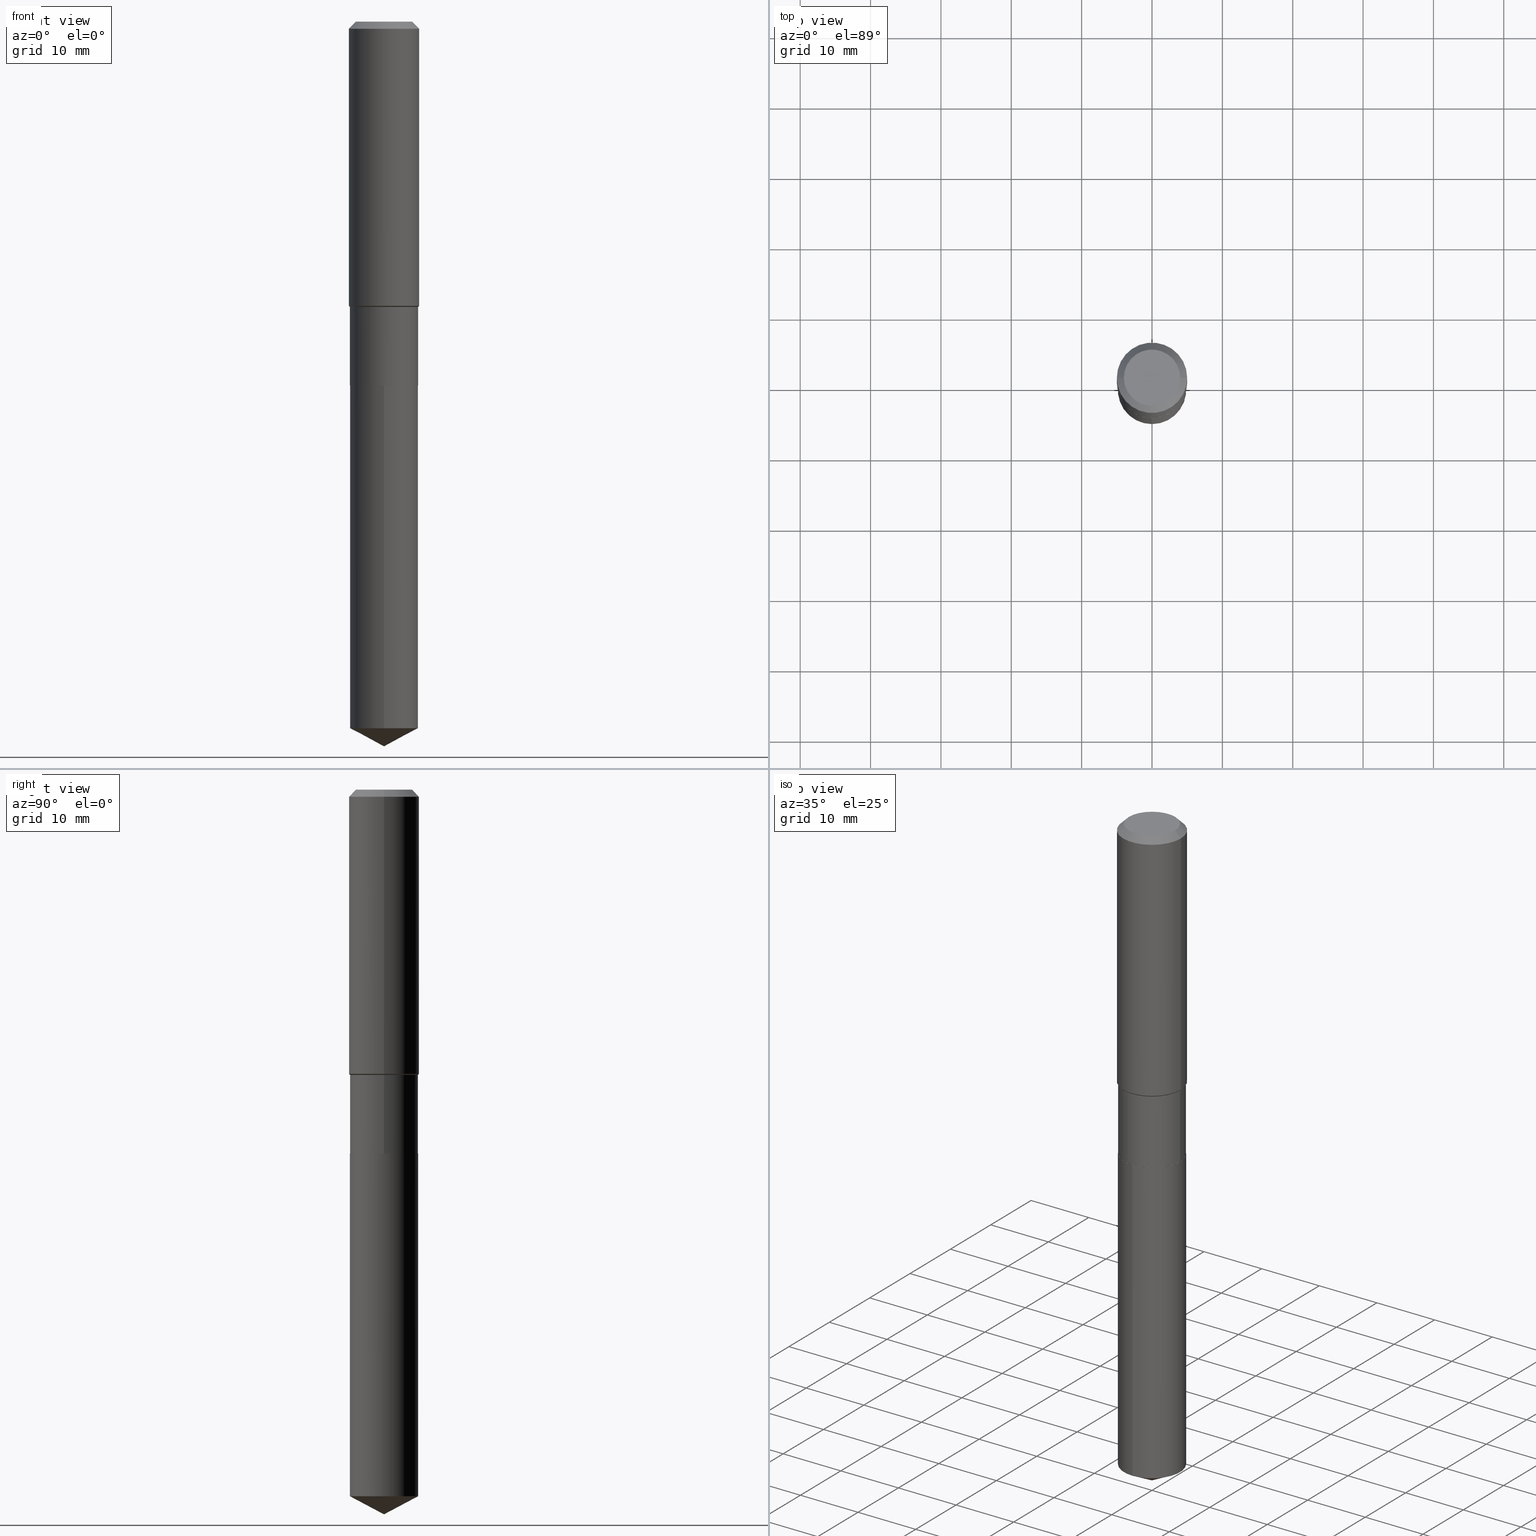
[diagram: canonical four-view strip — front | top / right | iso, engineering-drawing reading convention]
A machine part, canonical four-view strip (front | top / right | iso — engineering-drawing reading convention). The complete STEP part file that produces these views, byte-faithful:
ISO-10303-21;
HEADER;
FILE_DESCRIPTION (( 'STEP AP203' ),
    '1' );
FILE_NAME ('64867.STEP',
    '2024-04-24T19:22:35',
    ( '' ),
    ( '' ),
    'SwSTEP 2.0',
    'SolidWorks 2023',
    '' );
FILE_SCHEMA (( 'CONFIG_CONTROL_DESIGN' ));
ENDSEC;

DATA;
#1 = PERSON_AND_ORGANIZATION ( #427, #97 ) ;
#2 = VECTOR ( 'NONE', #70, 39.37007874015748143 ) ;
#3 = CARTESIAN_POINT ( 'NONE',  ( -9.427742298522567634E-47, 1.346031739168368355E-32, 3.855188123715870730E-18 ) ) ;
#4 = CC_DESIGN_PERSON_AND_ORGANIZATION_ASSIGNMENT ( #189, #81, ( #286 ) ) ;
#5 = CIRCLE ( 'NONE', #487, 0.1909499999999999531 ) ;
#6 = CARTESIAN_POINT ( 'NONE',  ( -1.333396723304142848E-15, -0.1909500000000071140, -2.035399999999999210 ) ) ;
#7 = ORIENTED_EDGE ( 'NONE', *, *, #341, .F. ) ;
#8 = LINE ( 'NONE', #108, #436 ) ;
#9 = COORDINATED_UNIVERSAL_TIME_OFFSET ( 5, 0, .BEHIND. ) ;
#10 = EDGE_CURVE ( 'NONE', #402, #484, #294, .T. ) ;
#11 = DIRECTION ( 'NONE',  ( 1.000000000000000000, -6.982962677686265922E-15, 0.000000000000000000 ) ) ;
#12 = AXIS2_PLACEMENT_3D ( 'NONE', #151, #296, #228 ) ;
#13 = APPROVAL_PERSON_ORGANIZATION ( #267, #232, #159 ) ;
#14 = DATE_AND_TIME ( #456, #419 ) ;
#15 = DIRECTION ( 'NONE',  ( 1.000000000000000000, -6.982962677686266711E-15, 0.000000000000000000 ) ) ;
#16 = DIRECTION ( 'NONE',  ( -6.982962677686265922E-15, -1.000000000000000000, 2.861322852751257324E-15 ) ) ;
#17 = DIRECTION ( 'NONE',  ( 1.000000000000000000, -6.982962677686265922E-15, 0.000000000000000000 ) ) ;
#18 = ADVANCED_FACE ( 'NONE', ( #403 ), #65, .T. ) ;
#19 = AXIS2_PLACEMENT_3D ( 'NONE', #461, #37, #112 ) ;
#20 = CARTESIAN_POINT ( 'NONE',  ( 9.627810689950954155E-31, -1.374596203102556547E-16, -0.03937000000000029365 ) ) ;
#21 = COORDINATED_UNIVERSAL_TIME_OFFSET ( 5, 0, .BEHIND. ) ;
#22 = EDGE_LOOP ( 'NONE', ( #219, #441, #439, #60 ) ) ;
#23 = ORIENTED_EDGE ( 'NONE', *, *, #432, .T. ) ;
#24 = ADVANCED_FACE ( 'NONE', ( #486 ), #410, .T. ) ;
#25 = VERTEX_POINT ( 'NONE', #293 ) ;
#26 = ORIENTED_EDGE ( 'NONE', *, *, #358, .T. ) ;
#27 = AXIS2_PLACEMENT_3D ( 'NONE', #178, #169, #289 ) ;
#28 = ORIENTED_EDGE ( 'NONE', *, *, #299, .F. ) ;
#29 = CC_DESIGN_SECURITY_CLASSIFICATION ( #286, ( #197 ) ) ;
#30 = ORIENTED_EDGE ( 'NONE', *, *, #201, .F. ) ;
#31 = DIRECTION ( 'NONE',  ( -2.445468806185136597E-29, 3.491481338843145583E-15, 1.000000000000000000 ) ) ;
#32 = CC_DESIGN_PERSON_AND_ORGANIZATION_ASSIGNMENT ( #44, #379, ( #96 ) ) ;
#33 = ORIENTED_EDGE ( 'NONE', *, *, #212, .T. ) ;
#34 = VECTOR ( 'NONE', #191, 39.37007874015748143 ) ;
#35 = ORIENTED_EDGE ( 'NONE', *, *, #10, .T. ) ;
#36 = CARTESIAN_POINT ( 'NONE',  ( -4.713871149261283817E-47, 6.730158695841841775E-33, 1.927594061857935365E-18 ) ) ;
#37 = DIRECTION ( 'NONE',  ( 2.445468806185136597E-29, -3.491481338843145583E-15, -1.000000000000000000 ) ) ;
#38 = APPLICATION_PROTOCOL_DEFINITION ( 'international standard', 'config_control_design', 1994, #225 ) ;
#39 = EDGE_CURVE ( 'NONE', #369, #176, #449, .T. ) ;
#40 = DIRECTION ( 'NONE',  ( 1.000000000000000000, -6.982962677686265922E-15, 4.876223630392693006E-29 ) ) ;
#41 = LINE ( 'NONE', #340, #400 ) ;
#42 = AXIS2_PLACEMENT_3D ( 'NONE', #36, #337, #417 ) ;
#43 = APPROVAL_PERSON_ORGANIZATION ( #1, #174, #485 ) ;
#44 = PERSON_AND_ORGANIZATION ( #427, #97 ) ;
#45 = LINE ( 'NONE', #259, #260 ) ;
#46 = EDGE_CURVE ( 'NONE', #324, #193, #179, .T. ) ;
#47 = CARTESIAN_POINT ( 'NONE',  ( 9.627810689950954155E-31, -1.374596203102556547E-16, -0.03937000000000029365 ) ) ;
#48 = DIRECTION ( 'NONE',  ( -2.445468806185136597E-29, 3.491481338843145583E-15, 1.000000000000000000 ) ) ;
#49 = AXIS2_PLACEMENT_3D ( 'NONE', #476, #326, #135 ) ;
#50 = CC_DESIGN_APPROVAL ( #232, ( #197 ) ) ;
#51 = APPROVAL_DATE_TIME ( #155, #232 ) ;
#52 = CARTESIAN_POINT ( 'NONE',  ( 9.668415666790709812E-29, -1.380369680359147587E-14, -3.953570084024240927 ) ) ;
#53 = EDGE_CURVE ( 'NONE', #353, #120, #234, .T. ) ;
#54 = LINE ( 'NONE', #163, #34 ) ;
#55 = CYLINDRICAL_SURFACE ( 'NONE', #269, 0.1909499999999999809 ) ;
#56 = CLOSED_SHELL ( 'NONE', ( #18, #226, #424, #285, #331 ) ) ;
#57 = CIRCLE ( 'NONE', #235, 0.1574800000000000089 ) ;
#58 = ADVANCED_FACE ( 'NONE', ( #102 ), #407, .T. ) ;
#59 =( NAMED_UNIT ( * ) SI_UNIT ( $, .STERADIAN. ) SOLID_ANGLE_UNIT ( ) );
#60 = ORIENTED_EDGE ( 'NONE', *, *, #380, .T. ) ;
#61 = CARTESIAN_POINT ( 'NONE',  ( -0.1968500000000000250, -1.446277821392496780E-15, -0.03937000000000029365 ) ) ;
#62 = ORIENTED_EDGE ( 'NONE', *, *, #46, .T. ) ;
#63 = AXIS2_PLACEMENT_3D ( 'NONE', #215, #395, #207 ) ;
#64 = LENGTH_MEASURE_WITH_UNIT ( LENGTH_MEASURE( 0.02539999999999999897 ), #128 );
#65 = CYLINDRICAL_SURFACE ( 'NONE', #27, 0.1909500000000000086 ) ;
#66 = PRODUCT ( '64867', '64867', '', ( #367 ) ) ;
#67 = ORIENTED_EDGE ( 'NONE', *, *, #105, .T. ) ;
#68 = DIRECTION ( 'NONE',  ( 1.000000000000000000, -6.982962677686266711E-15, 0.000000000000000000 ) ) ;
#69 = AXIS2_PLACEMENT_3D ( 'NONE', #239, #233, #357 ) ;
#70 = DIRECTION ( 'NONE',  ( 0.7071067811864267805, -2.468850131080992517E-15, 0.7071067811866682540 ) ) ;
#71 = EDGE_CURVE ( 'NONE', #306, #402, #210, .T. ) ;
#72 = DIRECTION ( 'NONE',  ( 1.000000000000000000, -6.982962677686266711E-15, 0.000000000000000000 ) ) ;
#73 = ORIENTED_EDGE ( 'NONE', *, *, #137, .F. ) ;
#74 = CARTESIAN_POINT ( 'NONE',  ( 4.976284473706134257E-29, -7.104815376411916848E-15, -2.034899999999999931 ) ) ;
#75 = DATE_TIME_ROLE ( 'classification_date' ) ;
#76 = EDGE_CURVE ( 'NONE', #365, #484, #268, .T. ) ;
#77 = CARTESIAN_POINT ( 'NONE',  ( 0.1968500000000002192, -6.927098976264797529E-15, -1.590300000000000047 ) ) ;
#78 = CALENDAR_DATE ( 2024, 24, 4 ) ;
#79 = FACE_OUTER_BOUND ( 'NONE', #217, .T. ) ;
#80 = CARTESIAN_POINT ( 'NONE',  ( 0.000000000000000000, 0.000000000000000000, 0.000000000000000000 ) ) ;
#81 = PERSON_AND_ORGANIZATION_ROLE ( 'classification_officer' ) ;
#82 = CARTESIAN_POINT ( 'NONE',  ( 4.977507208109226498E-29, -7.106561117081337562E-15, -2.035399999999999654 ) ) ;
#83 = AXIS2_PLACEMENT_3D ( 'NONE', #145, #384, #412 ) ;
#84 = CC_DESIGN_PERSON_AND_ORGANIZATION_ASSIGNMENT ( #389, #265, ( #197 ) ) ;
#85 = DIRECTION ( 'NONE',  ( 1.000000000000000000, -6.982962677686266711E-15, 4.876176775795935793E-29 ) ) ;
#86 = CYLINDRICAL_SURFACE ( 'NONE', #401, 0.1909499999999999809 ) ;
#87 = DATE_AND_TIME ( #435, #123 ) ;
#88 = EDGE_CURVE ( 'NONE', #25, #426, #376, .T. ) ;
#89 = LINE ( 'NONE', #447, #448 ) ;
#90 = ORIENTED_EDGE ( 'NONE', *, *, #375, .F. ) ;
#91 = DIRECTION ( 'NONE',  ( -2.445512260748093930E-29, 3.491419109435710839E-15, 1.000000000000000000 ) ) ;
#92 = ORIENTED_EDGE ( 'NONE', *, *, #125, .F. ) ;
#93 = PERSON_AND_ORGANIZATION ( #427, #97 ) ;
#94 = EDGE_LOOP ( 'NONE', ( #218, #323, #328, #295 ) ) ;
#95 = DIRECTION ( 'NONE',  ( 1.000000000000000000, -6.982962677686265133E-15, 0.000000000000000000 ) ) ;
#96 = PRODUCT_DEFINITION ( 'UNKNOWN', '', #197, #138 ) ;
#97 = ORGANIZATION ( 'UNSPECIFIED', 'UNSPECIFIED', '' ) ;
#98 = DIRECTION ( 'NONE',  ( -2.445512260748093650E-29, 3.491419109435710839E-15, 1.000000000000000000 ) ) ;
#99 = CARTESIAN_POINT ( 'NONE',  ( 0.1968500000000000250, -1.487948651171581601E-15, -0.03937000000000029365 ) ) ;
#100 = EDGE_LOOP ( 'NONE', ( #291, #33, #26, #251 ) ) ;
#101 = ORIENTED_EDGE ( 'NONE', *, *, #358, .F. ) ;
#102 = FACE_OUTER_BOUND ( 'NONE', #114, .T. ) ;
#103 = ORIENTED_EDGE ( 'NONE', *, *, #46, .F. ) ;
#104 = DIRECTION ( 'NONE',  ( 1.000000000000000000, -6.982962677686265922E-15, 4.876223630392693006E-29 ) ) ;
#105 = EDGE_CURVE ( 'NONE', #193, #120, #190, .T. ) ;
#106 = CIRCLE ( 'NONE', #278, 0.1909499999999999531 ) ;
#107 = ORIENTED_EDGE ( 'NONE', *, *, #408, .F. ) ;
#108 = CARTESIAN_POINT ( 'NONE',  ( -0.1968500000000001082, 1.398703375343757985E-15, -9.682923725166787881E-30 ) ) ;
#109 = PERSON_AND_ORGANIZATION ( #427, #97 ) ;
#110 = CARTESIAN_POINT ( 'NONE',  ( 0.1968500000000000250, -1.512055823412797189E-15, -0.03937000000000029365 ) ) ;
#111 = EDGE_CURVE ( 'NONE', #370, #426, #8, .T. ) ;
#112 = DIRECTION ( 'NONE',  ( -1.000000000000000000, 6.982962677686265922E-15, 0.000000000000000000 ) ) ;
#113 = CARTESIAN_POINT ( 'NONE',  ( -9.427742298522567634E-47, 1.346031739168368355E-32, 3.855188123715870730E-18 ) ) ;
#114 = EDGE_LOOP ( 'NONE', ( #23, #488, #127, #482 ) ) ;
#115 = SHAPE_DEFINITION_REPRESENTATION ( #434, #132 ) ;
#116 = PLANE ( 'NONE',  #69 ) ;
#117 = CARTESIAN_POINT ( 'NONE',  ( 4.977507208109227059E-29, -7.106561117081339140E-15, -2.035400000000000098 ) ) ;
#118 = ADVANCED_FACE ( 'NONE', ( #263 ), #320, .T. ) ;
#119 = CARTESIAN_POINT ( 'NONE',  ( -0.1904500000000000082, -5.750683249652116288E-15, -2.035400000000000098 ) ) ;
#120 = VERTEX_POINT ( 'NONE', #338 ) ;
#121 = CIRCLE ( 'NONE', #363, 0.1904500000000000082 ) ;
#122 = AXIS2_PLACEMENT_3D ( 'NONE', #74, #227, #220 ) ;
#123 = LOCAL_TIME ( 15, 22, 35.00000000000000000, #21 ) ;
#124 = DIRECTION ( 'NONE',  ( -2.445468806185136597E-29, 3.491481338843145583E-15, 1.000000000000000000 ) ) ;
#125 = EDGE_CURVE ( 'NONE', #324, #409, #45, .T. ) ;
#126 = FACE_OUTER_BOUND ( 'NONE', #397, .T. ) ;
#127 = ORIENTED_EDGE ( 'NONE', *, *, #390, .F. ) ;
#128 =( LENGTH_UNIT ( ) NAMED_UNIT ( * ) SI_UNIT ( $, .METRE. ) );
#129 = CARTESIAN_POINT ( 'NONE',  ( 0.000000000000000000, 0.000000000000000000, 0.000000000000000000 ) ) ;
#130 = VECTOR ( 'NONE', #319, 39.37007874015748854 ) ;
#131 = AXIS2_PLACEMENT_3D ( 'NONE', #490, #381, #187 ) ;
#132 = ADVANCED_BREP_SHAPE_REPRESENTATION ( '64867', ( #279, #457, #63 ), #300 ) ;
#133 = LINE ( 'NONE', #288, #254 ) ;
#134 = ORIENTED_EDGE ( 'NONE', *, *, #399, .T. ) ;
#135 = DIRECTION ( 'NONE',  ( 1.000000000000000000, -6.982962677686265922E-15, 0.000000000000000000 ) ) ;
#136 = ORIENTED_EDGE ( 'NONE', *, *, #188, .T. ) ;
#137 = EDGE_CURVE ( 'NONE', #306, #365, #121, .T. ) ;
#138 = DESIGN_CONTEXT ( 'detailed design', #342, 'design' ) ;
#139 = DIRECTION ( 'NONE',  ( -2.445468806185136597E-29, 3.491481338843145583E-15, 1.000000000000000000 ) ) ;
#140 = ORIENTED_EDGE ( 'NONE', *, *, #444, .F. ) ;
#141 = VECTOR ( 'NONE', #433, 39.37007874015748143 ) ;
#142 = DIRECTION ( 'NONE',  ( -2.445512260748093650E-29, 3.491419109435710839E-15, 1.000000000000000000 ) ) ;
#143 = EDGE_CURVE ( 'NONE', #175, #176, #41, .T. ) ;
#144 = EDGE_LOOP ( 'NONE', ( #35, #149, #311, #101 ) ) ;
#145 = CARTESIAN_POINT ( 'NONE',  ( 3.903457308432716066E-29, -5.573102513061429663E-15, -1.596200000000000285 ) ) ;
#146 = DIRECTION ( 'NONE',  ( -2.445468806185136597E-29, 3.491481338843145583E-15, 1.000000000000000000 ) ) ;
#147 = CIRCLE ( 'NONE', #347, 0.1909500000000000086 ) ;
#148 = DIRECTION ( 'NONE',  ( -2.445468806185136597E-29, 3.491481338843145583E-15, 1.000000000000000000 ) ) ;
#149 = ORIENTED_EDGE ( 'NONE', *, *, #467, .T. ) ;
#150 = PERSON_AND_ORGANIZATION_ROLE ( 'creator' ) ;
#151 = CARTESIAN_POINT ( 'NONE',  ( 2.938752182690371349E-29, -1.002617435221089489E-14, -2.035399999999999654 ) ) ;
#152 = CALENDAR_DATE ( 2024, 24, 4 ) ;
#153 = ORIENTED_EDGE ( 'NONE', *, *, #201, .T. ) ;
#154 = DIRECTION ( 'NONE',  ( 6.273719981627762132E-15, 0.8829475928589292089, 0.4694715627858865870 ) ) ;
#155 = DATE_AND_TIME ( #152, #479 ) ;
#156 = VECTOR ( 'NONE', #344, 39.37007874015748143 ) ;
#157 = AXIS2_PLACEMENT_3D ( 'NONE', #117, #274, #15 ) ;
#158 = CARTESIAN_POINT ( 'NONE',  ( 0.1909499999999999809, -1.333396723304192546E-15, 9.311059553382337160E-30 ) ) ;
#159 = APPROVAL_ROLE ( '' ) ;
#160 = EDGE_CURVE ( 'NONE', #365, #306, #314, .T. ) ;
#161 = CARTESIAN_POINT ( 'NONE',  ( -0.1909499999999999531, -4.982177590802761889E-15, -1.596200000000000285 ) ) ;
#162 = CARTESIAN_POINT ( 'NONE',  ( 9.627810689950954155E-31, -1.374596203102556547E-16, -0.03937000000000029365 ) ) ;
#163 = CARTESIAN_POINT ( 'NONE',  ( 0.1909499999999999531, -6.906499236365622209E-15, -1.596200000000000285 ) ) ;
#164 = CIRCLE ( 'NONE', #394, 0.1968500000000002192 ) ;
#165 = CC_DESIGN_DATE_AND_TIME_ASSIGNMENT ( #14, #386, ( #96 ) ) ;
#166 = EDGE_LOOP ( 'NONE', ( #206, #248, #208, #450 ) ) ;
#167 = DIRECTION ( 'NONE',  ( 1.000000000000000000, -6.982962677686265922E-15, 0.000000000000000000 ) ) ;
#168 = APPROVAL_DATE_TIME ( #87, #174 ) ;
#169 = DIRECTION ( 'NONE',  ( -2.445512260748093650E-29, 3.491419109435710839E-15, 1.000000000000000000 ) ) ;
#170 = DIRECTION ( 'NONE',  ( 1.000000000000000000, -6.982962677686266711E-15, 0.000000000000000000 ) ) ;
#171 = ORIENTED_EDGE ( 'NONE', *, *, #137, .T. ) ;
#172 = AXIS2_PLACEMENT_3D ( 'NONE', #463, #148, #224 ) ;
#173 =( CONVERSION_BASED_UNIT ( 'INCH', #64 ) LENGTH_UNIT ( ) NAMED_UNIT ( #243 ) );
#174 = APPROVAL ( #240, 'UNSPECIFIED' ) ;
#175 = VERTEX_POINT ( 'NONE', #77 ) ;
#176 = VERTEX_POINT ( 'NONE', #110 ) ;
#177 = PERSON_AND_ORGANIZATION_ROLE ( 'design_owner' ) ;
#178 = CARTESIAN_POINT ( 'NONE',  ( 4.977507208109226498E-29, -7.106561117081337562E-15, -2.035399999999999654 ) ) ;
#179 = LINE ( 'NONE', #245, #130 ) ;
#180 = AXIS2_PLACEMENT_3D ( 'NONE', #82, #310, #468 ) ;
#181 = FACE_OUTER_BOUND ( 'NONE', #223, .T. ) ;
#182 = FACE_OUTER_BOUND ( 'NONE', #94, .T. ) ;
#183 = CARTESIAN_POINT ( 'NONE',  ( 1.356781353934007804E-15, 0.1909499999999862418, -3.953570084024241815 ) ) ;
#184 = EDGE_LOOP ( 'NONE', ( #229, #213, #90, #343 ) ) ;
#185 = FACE_OUTER_BOUND ( 'NONE', #249, .T. ) ;
#186 = AXIS2_PLACEMENT_3D ( 'NONE', #428, #200, #469 ) ;
#187 = DIRECTION ( 'NONE',  ( -6.982962677686265133E-15, -1.000000000000000000, 3.541896320645568363E-15 ) ) ;
#188 = EDGE_CURVE ( 'NONE', #25, #369, #57, .T. ) ;
#189 = PERSON_AND_ORGANIZATION ( #427, #97 ) ;
#190 = LINE ( 'NONE', #6, #339 ) ;
#191 = DIRECTION ( 'NONE',  ( 0.7071067811865434649, -2.468850131082213673E-15, 0.7071067811865516806 ) ) ;
#192 = ADVANCED_FACE ( 'NONE', ( #185 ), #266, .F. ) ;
#193 = VERTEX_POINT ( 'NONE', #271 ) ;
#194 = AXIS2_PLACEMENT_3D ( 'NONE', #257, #142, #452 ) ;
#195 = CONICAL_SURFACE ( 'NONE', #19, 0.1968500000000000250, 0.7853981633974447263 ) ;
#196 = FACE_OUTER_BOUND ( 'NONE', #349, .T. ) ;
#197 = PRODUCT_DEFINITION_FORMATION_WITH_SPECIFIED_SOURCE ( 'ANY', '', #66, .NOT_KNOWN. ) ;
#198 = DATE_AND_TIME ( #78, #205 ) ;
#199 = CARTESIAN_POINT ( 'NONE',  ( 9.916796768559594443E-29, -1.415805363067275312E-14, -4.055100000000000371 ) ) ;
#200 = DIRECTION ( 'NONE',  ( -2.445512260748093650E-29, 3.491419109435710839E-15, 1.000000000000000000 ) ) ;
#201 = EDGE_CURVE ( 'NONE', #369, #25, #455, .T. ) ;
#202 = DIRECTION ( 'NONE',  ( -2.445512260748093650E-29, 3.491419109435710839E-15, 1.000000000000000000 ) ) ;
#203 = CIRCLE ( 'NONE', #49, 0.1968500000000002192 ) ;
#204 = UNCERTAINTY_MEASURE_WITH_UNIT (LENGTH_MEASURE( 1.000000000000000082E-05 ), #173, 'distance_accuracy_value', 'NONE');
#205 = LOCAL_TIME ( 15, 22, 35.00000000000000000, #466 ) ;
#206 = ORIENTED_EDGE ( 'NONE', *, *, #76, .F. ) ;
#207 = DIRECTION ( 'NONE',  ( 1.000000000000000000, 0.000000000000000000, 0.000000000000000000 ) ) ;
#208 = ORIENTED_EDGE ( 'NONE', *, *, #71, .T. ) ;
#209 = CARTESIAN_POINT ( 'NONE',  ( -0.1909499999999999809, 1.356781353933911169E-15, -9.392706554841740811E-30 ) ) ;
#210 = LINE ( 'NONE', #362, #2 ) ;
#211 = ORIENTED_EDGE ( 'NONE', *, *, #375, .T. ) ;
#212 = EDGE_CURVE ( 'NONE', #484, #402, #374, .T. ) ;
#213 = ORIENTED_EDGE ( 'NONE', *, *, #444, .T. ) ;
#214 = CIRCLE ( 'NONE', #186, 0.1909500000000000086 ) ;
#215 = CARTESIAN_POINT ( 'NONE',  ( 0.000000000000000000, 0.000000000000000000, 0.000000000000000000 ) ) ;
#216 = ORIENTED_EDGE ( 'NONE', *, *, #10, .F. ) ;
#217 = EDGE_LOOP ( 'NONE', ( #297, #134, #475, #443 ) ) ;
#218 = ORIENTED_EDGE ( 'NONE', *, *, #481, .T. ) ;
#219 = ORIENTED_EDGE ( 'NONE', *, *, #39, .F. ) ;
#220 = DIRECTION ( 'NONE',  ( 1.000000000000000000, -6.982962677686265133E-15, 0.000000000000000000 ) ) ;
#221 = CONICAL_SURFACE ( 'NONE', #261, 74.04434902938338325, 1.082104136236485603 ) ;
#222 = DIRECTION ( 'NONE',  ( -2.445512260748093930E-29, 3.491419109435710839E-15, 1.000000000000000000 ) ) ;
#223 = EDGE_LOOP ( 'NONE', ( #103, #366, #7 ) ) ;
#224 = DIRECTION ( 'NONE',  ( 1.000000000000000000, -6.982962677686266711E-15, 0.000000000000000000 ) ) ;
#225 = APPLICATION_CONTEXT ( 'configuration controlled 3d designs of mechanical parts and assemblies' ) ;
#226 = ADVANCED_FACE ( 'NONE', ( #181 ), #308, .T. ) ;
#227 = DIRECTION ( 'NONE',  ( -2.445468806185136597E-29, 3.491481338843145583E-15, 1.000000000000000000 ) ) ;
#228 = DIRECTION ( 'NONE',  ( 1.000000000000000000, -6.982962677686265922E-15, 4.876176775795935793E-29 ) ) ;
#229 = ORIENTED_EDGE ( 'NONE', *, *, #341, .T. ) ;
#230 = ORIENTED_EDGE ( 'NONE', *, *, #299, .T. ) ;
#231 = DIRECTION ( 'NONE',  ( -2.445468806185136597E-29, 3.491481338843145583E-15, 1.000000000000000000 ) ) ;
#232 = APPROVAL ( #425, 'UNSPECIFIED' ) ;
#233 = DIRECTION ( 'NONE',  ( 2.445512260748093370E-29, -3.491419109435710839E-15, -1.000000000000000000 ) ) ;
#234 = CIRCLE ( 'NONE', #194, 0.1909500000000000086 ) ;
#235 = AXIS2_PLACEMENT_3D ( 'NONE', #113, #378, #40 ) ;
#236 = FACE_OUTER_BOUND ( 'NONE', #22, .T. ) ;
#237 = CARTESIAN_POINT ( 'NONE',  ( -0.1968500000000002192, -4.153799397818495766E-15, -1.590300000000000047 ) ) ;
#238 = ADVANCED_FACE ( 'NONE', ( #335 ), #489, .F. ) ;
#239 = CARTESIAN_POINT ( 'NONE',  ( 4.977507208109226498E-29, -7.106561117081337562E-15, -2.035399999999999654 ) ) ;
#240 = APPROVAL_STATUS ( 'not_yet_approved' ) ;
#241 = CIRCLE ( 'NONE', #437, 0.1909500000000000086 ) ;
#242 = CC_DESIGN_APPROVAL ( #256, ( #286 ) ) ;
#243 = DIMENSIONAL_EXPONENTS ( 1.000000000000000000, 0.000000000000000000, 0.000000000000000000, 0.000000000000000000, 0.000000000000000000, 0.000000000000000000, 0.000000000000000000 ) ;
#244 = DIRECTION ( 'NONE',  ( -0.7071067811865434649, 7.493145998870339961E-15, 0.7071067811865516806 ) ) ;
#245 = CARTESIAN_POINT ( 'NONE',  ( 9.916619873724709736E-29, -1.415830695414453642E-14, -4.055100000000000371 ) ) ;
#246 = ADVANCED_FACE ( 'NONE', ( #304 ), #195, .T. ) ;
#247 = CARTESIAN_POINT ( 'NONE',  ( 3.903457308432716066E-29, -5.573102513061429663E-15, -1.596200000000000285 ) ) ;
#248 = ORIENTED_EDGE ( 'NONE', *, *, #160, .T. ) ;
#249 = EDGE_LOOP ( 'NONE', ( #136, #153 ) ) ;
#250 = LINE ( 'NONE', #209, #333 ) ;
#251 = ORIENTED_EDGE ( 'NONE', *, *, #451, .F. ) ;
#252 = ORIENTED_EDGE ( 'NONE', *, *, #451, .T. ) ;
#253 = AXIS2_PLACEMENT_3D ( 'NONE', #446, #31, #95 ) ;
#254 = VECTOR ( 'NONE', #244, 39.37007874015748143 ) ;
#255 = LOCAL_TIME ( 15, 22, 35.00000000000000000, #303 ) ;
#256 = APPROVAL ( #301, 'UNSPECIFIED' ) ;
#257 = CARTESIAN_POINT ( 'NONE',  ( 4.977507208109226498E-29, -7.106561117081337562E-15, -2.035399999999999654 ) ) ;
#258 = DIRECTION ( 'NONE',  ( 0.7071067811865450192, -7.319954787623246579E-15, -0.7071067811865500152 ) ) ;
#259 = CARTESIAN_POINT ( 'NONE',  ( 9.916798319718489226E-29, -1.415805363067275312E-14, -4.055100000000000371 ) ) ;
#260 = VECTOR ( 'NONE', #154, 39.37007874015748143 ) ;
#261 = AXIS2_PLACEMENT_3D ( 'NONE', #359, #98, #442 ) ;
#262 = CC_DESIGN_APPROVAL ( #174, ( #96 ) ) ;
#263 = FACE_OUTER_BOUND ( 'NONE', #404, .T. ) ;
#264 = ADVANCED_FACE ( 'NONE', ( #182 ), #276, .T. ) ;
#265 = PERSON_AND_ORGANIZATION_ROLE ( 'design_supplier' ) ;
#266 = PLANE ( 'NONE',  #42 ) ;
#267 = PERSON_AND_ORGANIZATION ( #427, #97 ) ;
#268 = LINE ( 'NONE', #373, #156 ) ;
#269 = AXIS2_PLACEMENT_3D ( 'NONE', #272, #124, #387 ) ;
#270 = CC_DESIGN_PERSON_AND_ORGANIZATION_ASSIGNMENT ( #109, #150, ( #197 ) ) ;
#271 = CARTESIAN_POINT ( 'NONE',  ( -1.333396723304096305E-15, -0.1909500000000138031, -3.953570084024240483 ) ) ;
#272 = CARTESIAN_POINT ( 'NONE',  ( 0.000000000000000000, 0.000000000000000000, 0.000000000000000000 ) ) ;
#273 = VERTEX_POINT ( 'NONE', #161 ) ;
#274 = DIRECTION ( 'NONE',  ( -2.445468806185136597E-29, 3.491481338843145583E-15, 1.000000000000000000 ) ) ;
#275 = AXIS2_PLACEMENT_3D ( 'NONE', #129, #287, #440 ) ;
#276 = CONICAL_SURFACE ( 'NONE', #430, 0.1909499999999999531, 0.7853981633974425058 ) ;
#277 = DIRECTION ( 'NONE',  ( -1.000000000000000000, 6.982962677686265922E-15, 0.000000000000000000 ) ) ;
#278 = AXIS2_PLACEMENT_3D ( 'NONE', #329, #361, #480 ) ;
#279 = MANIFOLD_SOLID_BREP ( 'Body-Move/Copy2[1]', #56 ) ;
#280 = ADVANCED_FACE ( 'NONE', ( #474 ), #86, .T. ) ;
#281 = FACE_OUTER_BOUND ( 'NONE', #166, .T. ) ;
#282 = ORIENTED_EDGE ( 'NONE', *, *, #76, .T. ) ;
#283 = CYLINDRICAL_SURFACE ( 'NONE', #180, 0.1909500000000000086 ) ;
#284 = VECTOR ( 'NONE', #302, 39.37007874015748143 ) ;
#285 = ADVANCED_FACE ( 'NONE', ( #196 ), #283, .T. ) ;
#286 = SECURITY_CLASSIFICATION ( '', '', #345 ) ;
#287 = DIRECTION ( 'NONE',  ( -2.445468806185136597E-29, 3.491481338843145583E-15, 1.000000000000000000 ) ) ;
#288 = CARTESIAN_POINT ( 'NONE',  ( -0.1909499999999999531, -4.216321159127519480E-15, -1.596200000000000285 ) ) ;
#289 = DIRECTION ( 'NONE',  ( -6.982962677686265922E-15, -1.000000000000000000, 2.861322852751257324E-15 ) ) ;
#290 = DIRECTION ( 'NONE',  ( -2.445468806185136597E-29, 3.491481338843145583E-15, 1.000000000000000000 ) ) ;
#291 = ORIENTED_EDGE ( 'NONE', *, *, #467, .F. ) ;
#292 = EDGE_CURVE ( 'NONE', #462, #175, #54, .T. ) ;
#293 = CARTESIAN_POINT ( 'NONE',  ( -0.1574800000000000089, 1.168406772637159618E-15, 3.855188123707939751E-18 ) ) ;
#294 = CIRCLE ( 'NONE', #253, 0.1909500000000000086 ) ;
#295 = ORIENTED_EDGE ( 'NONE', *, *, #292, .F. ) ;
#296 = DIRECTION ( 'NONE',  ( -2.438088387897960049E-29, 3.491481338843145188E-15, 1.000000000000000000 ) ) ;
#297 = ORIENTED_EDGE ( 'NONE', *, *, #111, .F. ) ;
#298 = DIRECTION ( 'NONE',  ( 1.000000000000000000, -6.982962677686266711E-15, 0.000000000000000000 ) ) ;
#299 = EDGE_CURVE ( 'NONE', #409, #193, #214, .T. ) ;
#300 =( GEOMETRIC_REPRESENTATION_CONTEXT ( 3 ) GLOBAL_UNCERTAINTY_ASSIGNED_CONTEXT ( ( #204 ) ) GLOBAL_UNIT_ASSIGNED_CONTEXT ( ( #173, #377, #59 ) ) REPRESENTATION_CONTEXT ( 'NONE', 'WORKASPACE' ) );
#301 = APPROVAL_STATUS ( 'not_yet_approved' ) ;
#302 = DIRECTION ( 'NONE',  ( -0.7071067811865450192, 2.468850131082230634E-15, -0.7071067811865500152 ) ) ;
#303 = COORDINATED_UNIVERSAL_TIME_OFFSET ( 5, 0, .BEHIND. ) ;
#304 = FACE_OUTER_BOUND ( 'NONE', #330, .T. ) ;
#305 = COORDINATED_UNIVERSAL_TIME_OFFSET ( 5, 0, .BEHIND. ) ;
#306 = VERTEX_POINT ( 'NONE', #315 ) ;
#307 = DIRECTION ( 'NONE',  ( -2.445468806185136877E-29, 3.491481338843145188E-15, 1.000000000000000000 ) ) ;
#308 = CONICAL_SURFACE ( 'NONE', #131, 74.04434902938338325, 1.082104136236485603 ) ;
#309 = CYLINDRICAL_SURFACE ( 'NONE', #364, 0.1968500000000001082 ) ;
#310 = DIRECTION ( 'NONE',  ( -2.445512260748093650E-29, 3.491419109435710839E-15, 1.000000000000000000 ) ) ;
#311 = ORIENTED_EDGE ( 'NONE', *, *, #481, .F. ) ;
#312 = CARTESIAN_POINT ( 'NONE',  ( 1.356781353934008199E-15, 0.1909499999999929032, -2.035400000000000542 ) ) ;
#313 = ADVANCED_FACE ( 'NONE', ( #281 ), #464, .T. ) ;
#314 = CIRCLE ( 'NONE', #172, 0.1904500000000000082 ) ;
#315 = CARTESIAN_POINT ( 'NONE',  ( 0.1904500000000000082, -8.436466359046688679E-15, -2.035400000000000098 ) ) ;
#316 = CARTESIAN_POINT ( 'NONE',  ( 3.889029042476222915E-29, -5.552502773162254343E-15, -1.590300000000000047 ) ) ;
#317 = ADVANCED_FACE ( 'NONE', ( #236 ), #355, .T. ) ;
#318 = CARTESIAN_POINT ( 'NONE',  ( 0.1909499999999999531, -6.906499236365622209E-15, -1.596200000000000285 ) ) ;
#319 = DIRECTION ( 'NONE',  ( -6.165590087286829718E-15, -0.8829475928589257672, 0.4694715627858926932 ) ) ;
#320 = CONICAL_SURFACE ( 'NONE', #83, 0.1909499999999999531, 0.7853981633974425058 ) ;
#321 = FACE_OUTER_BOUND ( 'NONE', #383, .T. ) ;
#322 = AXIS2_PLACEMENT_3D ( 'NONE', #47, #48, #17 ) ;
#323 = ORIENTED_EDGE ( 'NONE', *, *, #408, .T. ) ;
#324 = VERTEX_POINT ( 'NONE', #199 ) ;
#325 = ORIENTED_EDGE ( 'NONE', *, *, #88, .F. ) ;
#326 = DIRECTION ( 'NONE',  ( -2.445468806185136597E-29, 3.491481338843145583E-15, 1.000000000000000000 ) ) ;
#327 = ORIENTED_EDGE ( 'NONE', *, *, #53, .F. ) ;
#328 = ORIENTED_EDGE ( 'NONE', *, *, #432, .F. ) ;
#329 = CARTESIAN_POINT ( 'NONE',  ( 3.903457308432716066E-29, -5.573102513061429663E-15, -1.596200000000000285 ) ) ;
#330 = EDGE_LOOP ( 'NONE', ( #30, #398, #406, #325 ) ) ;
#331 = ADVANCED_FACE ( 'NONE', ( #126 ), #116, .F. ) ;
#332 = CARTESIAN_POINT ( 'NONE',  ( 4.977507208109227059E-29, -7.106561117081339140E-15, -2.035400000000000098 ) ) ;
#333 = VECTOR ( 'NONE', #445, 39.37007874015748143 ) ;
#334 = ORIENTED_EDGE ( 'NONE', *, *, #71, .F. ) ;
#335 = FACE_OUTER_BOUND ( 'NONE', #471, .T. ) ;
#336 = ADVANCED_FACE ( 'NONE', ( #391 ), #55, .T. ) ;
#337 = DIRECTION ( 'NONE',  ( 2.438088387897960049E-29, -3.491481338843145188E-15, -1.000000000000000000 ) ) ;
#338 = CARTESIAN_POINT ( 'NONE',  ( -1.333396723304142848E-15, -0.1909500000000071140, -2.035399999999999210 ) ) ;
#339 = VECTOR ( 'NONE', #222, 39.37007874015748143 ) ;
#340 = CARTESIAN_POINT ( 'NONE',  ( 0.1968500000000001082, -1.374596203102542397E-15, 9.598753983154305062E-30 ) ) ;
#341 = EDGE_CURVE ( 'NONE', #193, #409, #241, .T. ) ;
#342 = APPLICATION_CONTEXT ( 'configuration controlled 3d designs of mechanical parts and assemblies' ) ;
#343 = ORIENTED_EDGE ( 'NONE', *, *, #105, .F. ) ;
#344 = DIRECTION ( 'NONE',  ( -0.7071067811864267805, 7.493145998869918709E-15, 0.7071067811866682540 ) ) ;
#345 = SECURITY_CLASSIFICATION_LEVEL ( 'unclassified' ) ;
#346 = DIRECTION ( 'NONE',  ( -2.445468806185136597E-29, 3.491481338843145583E-15, 1.000000000000000000 ) ) ;
#347 = AXIS2_PLACEMENT_3D ( 'NONE', #423, #202, #392 ) ;
#348 = DIRECTION ( 'NONE',  ( 1.000000000000000000, -6.982962677686266711E-15, 4.876176775795935232E-29 ) ) ;
#349 = EDGE_LOOP ( 'NONE', ( #140, #230, #67, #327 ) ) ;
#350 = CC_DESIGN_PERSON_AND_ORGANIZATION_ASSIGNMENT ( #93, #177, ( #66 ) ) ;
#351 = DIRECTION ( 'NONE',  ( -2.445512260748093650E-29, 3.491419109435710839E-15, 1.000000000000000000 ) ) ;
#352 = CARTESIAN_POINT ( 'NONE',  ( 0.1574800000000000089, -1.284169937930321189E-15, 3.855188123724205385E-18 ) ) ;
#353 = VERTEX_POINT ( 'NONE', #312 ) ;
#354 = VECTOR ( 'NONE', #258, 39.37007874015748143 ) ;
#355 = CONICAL_SURFACE ( 'NONE', #472, 0.1968500000000000250, 0.7853981633974447263 ) ;
#356 = AXIS2_PLACEMENT_3D ( 'NONE', #3, #454, #104 ) ;
#357 = DIRECTION ( 'NONE',  ( 6.982962677686265922E-15, 1.000000000000000000, -3.491419109435710839E-15 ) ) ;
#358 = EDGE_CURVE ( 'NONE', #402, #462, #470, .T. ) ;
#359 = CARTESIAN_POINT ( 'NONE',  ( -8.636330194453083287E-28, 1.232992649609658139E-13, 35.31497874015747840 ) ) ;
#360 = ORIENTED_EDGE ( 'NONE', *, *, #399, .F. ) ;
#361 = DIRECTION ( 'NONE',  ( -2.445468806185136597E-29, 3.491481338843145583E-15, 1.000000000000000000 ) ) ;
#362 = CARTESIAN_POINT ( 'NONE',  ( 0.1904500000000000082, -8.436466359046688679E-15, -2.035400000000000098 ) ) ;
#363 = AXIS2_PLACEMENT_3D ( 'NONE', #458, #411, #72 ) ;
#364 = AXIS2_PLACEMENT_3D ( 'NONE', #431, #393, #85 ) ;
#365 = VERTEX_POINT ( 'NONE', #119 ) ;
#366 = ORIENTED_EDGE ( 'NONE', *, *, #125, .T. ) ;
#367 = MECHANICAL_CONTEXT ( 'NONE', #225, 'mechanical' ) ;
#368 = ADVANCED_FACE ( 'NONE', ( #79 ), #309, .T. ) ;
#369 = VERTEX_POINT ( 'NONE', #352 ) ;
#370 = VERTEX_POINT ( 'NONE', #237 ) ;
#371 = ORIENTED_EDGE ( 'NONE', *, *, #160, .F. ) ;
#372 = CLOSED_SHELL ( 'NONE', ( #24, #246, #58, #264, #336, #280, #118, #368, #317, #192, #238, #313 ) ) ;
#373 = CARTESIAN_POINT ( 'NONE',  ( -0.1904500000000000082, -5.753332476826228278E-15, -2.035400000000000098 ) ) ;
#374 = CIRCLE ( 'NONE', #122, 0.1909500000000000086 ) ;
#375 = EDGE_CURVE ( 'NONE', #120, #353, #147, .T. ) ;
#376 = LINE ( 'NONE', #421, #284 ) ;
#377 =( NAMED_UNIT ( * ) PLANE_ANGLE_UNIT ( ) SI_UNIT ( $, .RADIAN. ) );
#378 = DIRECTION ( 'NONE',  ( -2.445468806185136597E-29, 3.491481338843145583E-15, 1.000000000000000000 ) ) ;
#379 = PERSON_AND_ORGANIZATION_ROLE ( 'creator' ) ;
#380 = EDGE_CURVE ( 'NONE', #426, #176, #418, .T. ) ;
#381 = DIRECTION ( 'NONE',  ( -2.445512260748093650E-29, 3.491419109435710839E-15, 1.000000000000000000 ) ) ;
#382 = AXIS2_PLACEMENT_3D ( 'NONE', #20, #473, #167 ) ;
#383 = EDGE_LOOP ( 'NONE', ( #92, #62, #28 ) ) ;
#384 = DIRECTION ( 'NONE',  ( -2.445468806185136597E-29, 3.491481338843145583E-15, 1.000000000000000000 ) ) ;
#385 = DIRECTION ( 'NONE',  ( 2.445468806185136597E-29, -3.491481338843145583E-15, -1.000000000000000000 ) ) ;
#386 = DATE_TIME_ROLE ( 'creation_date' ) ;
#387 = DIRECTION ( 'NONE',  ( 1.000000000000000000, -6.982962677686266711E-15, 4.876176775795935232E-29 ) ) ;
#388 = AXIS2_PLACEMENT_3D ( 'NONE', #332, #139, #68 ) ;
#389 = PERSON_AND_ORGANIZATION ( #427, #97 ) ;
#390 = EDGE_CURVE ( 'NONE', #176, #426, #478, .T. ) ;
#391 = FACE_OUTER_BOUND ( 'NONE', #144, .T. ) ;
#392 = DIRECTION ( 'NONE',  ( -6.982962677686265922E-15, -1.000000000000000000, 2.861322852751257324E-15 ) ) ;
#393 = DIRECTION ( 'NONE',  ( -2.445468806185136597E-29, 3.491481338843145583E-15, 1.000000000000000000 ) ) ;
#394 = AXIS2_PLACEMENT_3D ( 'NONE', #316, #346, #11 ) ;
#395 = DIRECTION ( 'NONE',  ( 0.000000000000000000, 0.000000000000000000, 1.000000000000000000 ) ) ;
#396 = CARTESIAN_POINT ( 'NONE',  ( -0.1909500000000000086, -4.982177590802761100E-15, -2.034899999999999931 ) ) ;
#397 = EDGE_LOOP ( 'NONE', ( #211, #429 ) ) ;
#398 = ORIENTED_EDGE ( 'NONE', *, *, #39, .T. ) ;
#399 = EDGE_CURVE ( 'NONE', #370, #175, #164, .T. ) ;
#400 = VECTOR ( 'NONE', #307, 39.37007874015748143 ) ;
#401 = AXIS2_PLACEMENT_3D ( 'NONE', #80, #231, #348 ) ;
#402 = VERTEX_POINT ( 'NONE', #483 ) ;
#403 = FACE_OUTER_BOUND ( 'NONE', #184, .T. ) ;
#404 = EDGE_LOOP ( 'NONE', ( #107, #252, #405, #360 ) ) ;
#405 = ORIENTED_EDGE ( 'NONE', *, *, #292, .T. ) ;
#406 = ORIENTED_EDGE ( 'NONE', *, *, #390, .T. ) ;
#407 = CYLINDRICAL_SURFACE ( 'NONE', #275, 0.1968500000000001082 ) ;
#408 = EDGE_CURVE ( 'NONE', #273, #370, #133, .T. ) ;
#409 = VERTEX_POINT ( 'NONE', #183 ) ;
#410 = CONICAL_SURFACE ( 'NONE', #388, 0.1904500000000000082, 0.7853981633972775267 ) ;
#411 = DIRECTION ( 'NONE',  ( -2.445468806185136597E-29, 3.491481338843145583E-15, 1.000000000000000000 ) ) ;
#412 = DIRECTION ( 'NONE',  ( 1.000000000000000000, -6.982962677686266711E-15, 0.000000000000000000 ) ) ;
#413 = CALENDAR_DATE ( 2024, 24, 4 ) ;
#414 = DIRECTION ( 'NONE',  ( -2.445468806185136877E-29, 3.491481338843145188E-15, 1.000000000000000000 ) ) ;
#415 = APPROVAL_DATE_TIME ( #198, #256 ) ;
#416 = CC_DESIGN_DATE_AND_TIME_ASSIGNMENT ( #422, #75, ( #286 ) ) ;
#417 = DIRECTION ( 'NONE',  ( -1.000000000000000000, 6.982962677686265922E-15, -4.876176775795935793E-29 ) ) ;
#418 = CIRCLE ( 'NONE', #322, 0.1968500000000000250 ) ;
#419 = LOCAL_TIME ( 15, 22, 35.00000000000000000, #305 ) ;
#420 = APPROVAL_ROLE ( '' ) ;
#421 = CARTESIAN_POINT ( 'NONE',  ( -0.1968500000000000250, 1.237136582792286225E-15, -0.03937000000000029365 ) ) ;
#422 = DATE_AND_TIME ( #413, #255 ) ;
#423 = CARTESIAN_POINT ( 'NONE',  ( 4.977507208109226498E-29, -7.106561117081337562E-15, -2.035399999999999654 ) ) ;
#424 = ADVANCED_FACE ( 'NONE', ( #321 ), #221, .T. ) ;
#425 = APPROVAL_STATUS ( 'not_yet_approved' ) ;
#426 = VERTEX_POINT ( 'NONE', #61 ) ;
#427 = PERSON ( 'UNSPECIFIED', 'UNSPECIFIED', 'UNSPECIFIED', ('UNSPECIFIED'), ('UNSPECIFIED'), ('UNSPECIFIED') ) ;
#428 = CARTESIAN_POINT ( 'NONE',  ( 9.668415666790709812E-29, -1.380369680359147587E-14, -3.953570084024240927 ) ) ;
#429 = ORIENTED_EDGE ( 'NONE', *, *, #53, .T. ) ;
#430 = AXIS2_PLACEMENT_3D ( 'NONE', #453, #146, #298 ) ;
#431 = CARTESIAN_POINT ( 'NONE',  ( 0.000000000000000000, 0.000000000000000000, 0.000000000000000000 ) ) ;
#432 = EDGE_CURVE ( 'NONE', #175, #370, #203, .T. ) ;
#433 = DIRECTION ( 'NONE',  ( -2.445468806185136877E-29, 3.491481338843145188E-15, 1.000000000000000000 ) ) ;
#434 = PRODUCT_DEFINITION_SHAPE ( 'NONE', 'NONE',  #96 ) ;
#435 = CALENDAR_DATE ( 2024, 24, 4 ) ;
#436 = VECTOR ( 'NONE', #414, 39.37007874015748143 ) ;
#437 = AXIS2_PLACEMENT_3D ( 'NONE', #52, #351, #16 ) ;
#438 = APPLICATION_PROTOCOL_DEFINITION ( 'international standard', 'config_control_design', 1994, #342 ) ;
#439 = ORIENTED_EDGE ( 'NONE', *, *, #88, .T. ) ;
#440 = DIRECTION ( 'NONE',  ( 1.000000000000000000, -6.982962677686266711E-15, 4.876176775795935793E-29 ) ) ;
#441 = ORIENTED_EDGE ( 'NONE', *, *, #188, .F. ) ;
#442 = DIRECTION ( 'NONE',  ( -6.982962677686265133E-15, -1.000000000000000000, 3.541896320645568363E-15 ) ) ;
#443 = ORIENTED_EDGE ( 'NONE', *, *, #380, .F. ) ;
#444 = EDGE_CURVE ( 'NONE', #409, #353, #89, .T. ) ;
#445 = DIRECTION ( 'NONE',  ( -2.445468806185136877E-29, 3.491481338843145188E-15, 1.000000000000000000 ) ) ;
#446 = CARTESIAN_POINT ( 'NONE',  ( 4.976284473706134257E-29, -7.104815376411916848E-15, -2.034899999999999931 ) ) ;
#447 = CARTESIAN_POINT ( 'NONE',  ( 1.356781353933960867E-15, 0.1909499999999929032, -2.035400000000000542 ) ) ;
#448 = VECTOR ( 'NONE', #91, 39.37007874015748143 ) ;
#449 = LINE ( 'NONE', #99, #354 ) ;
#450 = ORIENTED_EDGE ( 'NONE', *, *, #212, .F. ) ;
#451 = EDGE_CURVE ( 'NONE', #273, #462, #5, .T. ) ;
#452 = DIRECTION ( 'NONE',  ( -6.982962677686265922E-15, -1.000000000000000000, 2.861322852751257324E-15 ) ) ;
#453 = CARTESIAN_POINT ( 'NONE',  ( 3.903457308432716066E-29, -5.573102513061429663E-15, -1.596200000000000285 ) ) ;
#454 = DIRECTION ( 'NONE',  ( -2.445468806185136597E-29, 3.491481338843145583E-15, 1.000000000000000000 ) ) ;
#455 = CIRCLE ( 'NONE', #356, 0.1574800000000000089 ) ;
#456 = CALENDAR_DATE ( 2024, 24, 4 ) ;
#457 = MANIFOLD_SOLID_BREP ( 'Body-Move/Copy2[2]', #372 ) ;
#458 = CARTESIAN_POINT ( 'NONE',  ( 4.977507208109227059E-29, -7.106561117081339140E-15, -2.035400000000000098 ) ) ;
#459 = PRODUCT_RELATED_PRODUCT_CATEGORY ( 'detail', '', ( #66 ) ) ;
#460 = PERSON_AND_ORGANIZATION ( #427, #97 ) ;
#461 = CARTESIAN_POINT ( 'NONE',  ( 9.627810689950954155E-31, -1.374596203102556547E-16, -0.03937000000000029365 ) ) ;
#462 = VERTEX_POINT ( 'NONE', #318 ) ;
#463 = CARTESIAN_POINT ( 'NONE',  ( 4.977507208109227059E-29, -7.106561117081339140E-15, -2.035400000000000098 ) ) ;
#464 = CONICAL_SURFACE ( 'NONE', #157, 0.1904500000000000082, 0.7853981633972775267 ) ;
#465 = APPROVAL_PERSON_ORGANIZATION ( #460, #256, #420 ) ;
#466 = COORDINATED_UNIVERSAL_TIME_OFFSET ( 5, 0, .BEHIND. ) ;
#467 = EDGE_CURVE ( 'NONE', #484, #273, #250, .T. ) ;
#468 = DIRECTION ( 'NONE',  ( -6.982962677686265922E-15, -1.000000000000000000, 2.861322852751257324E-15 ) ) ;
#469 = DIRECTION ( 'NONE',  ( -6.982962677686265922E-15, -1.000000000000000000, 2.861322852751257324E-15 ) ) ;
#470 = LINE ( 'NONE', #158, #141 ) ;
#471 = EDGE_LOOP ( 'NONE', ( #73, #371 ) ) ;
#472 = AXIS2_PLACEMENT_3D ( 'NONE', #162, #385, #277 ) ;
#473 = DIRECTION ( 'NONE',  ( -2.445468806185136597E-29, 3.491481338843145583E-15, 1.000000000000000000 ) ) ;
#474 = FACE_OUTER_BOUND ( 'NONE', #100, .T. ) ;
#475 = ORIENTED_EDGE ( 'NONE', *, *, #143, .T. ) ;
#476 = CARTESIAN_POINT ( 'NONE',  ( 3.889029042476222915E-29, -5.552502773162254343E-15, -1.590300000000000047 ) ) ;
#477 = EDGE_LOOP ( 'NONE', ( #171, #282, #216, #334 ) ) ;
#478 = CIRCLE ( 'NONE', #382, 0.1968500000000000250 ) ;
#479 = LOCAL_TIME ( 15, 22, 35.00000000000000000, #9 ) ;
#480 = DIRECTION ( 'NONE',  ( 1.000000000000000000, -6.982962677686266711E-15, 0.000000000000000000 ) ) ;
#481 = EDGE_CURVE ( 'NONE', #462, #273, #106, .T. ) ;
#482 = ORIENTED_EDGE ( 'NONE', *, *, #143, .F. ) ;
#483 = CARTESIAN_POINT ( 'NONE',  ( 0.1909500000000000086, -8.438212099716109394E-15, -2.034899999999999931 ) ) ;
#484 = VERTEX_POINT ( 'NONE', #396 ) ;
#485 = APPROVAL_ROLE ( '' ) ;
#486 = FACE_OUTER_BOUND ( 'NONE', #477, .T. ) ;
#487 = AXIS2_PLACEMENT_3D ( 'NONE', #247, #290, #170 ) ;
#488 = ORIENTED_EDGE ( 'NONE', *, *, #111, .T. ) ;
#489 = PLANE ( 'NONE',  #12 ) ;
#490 = CARTESIAN_POINT ( 'NONE',  ( -8.636330194453083287E-28, 1.232992649609658139E-13, 35.31497874015747840 ) ) ;
ENDSEC;
END-ISO-10303-21;
